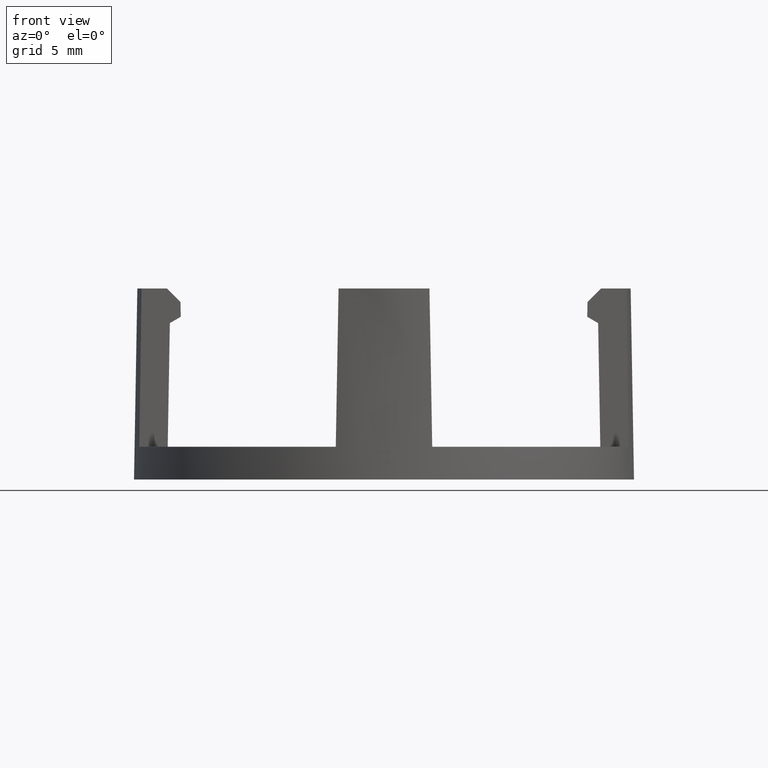
[diagram: clean part render]
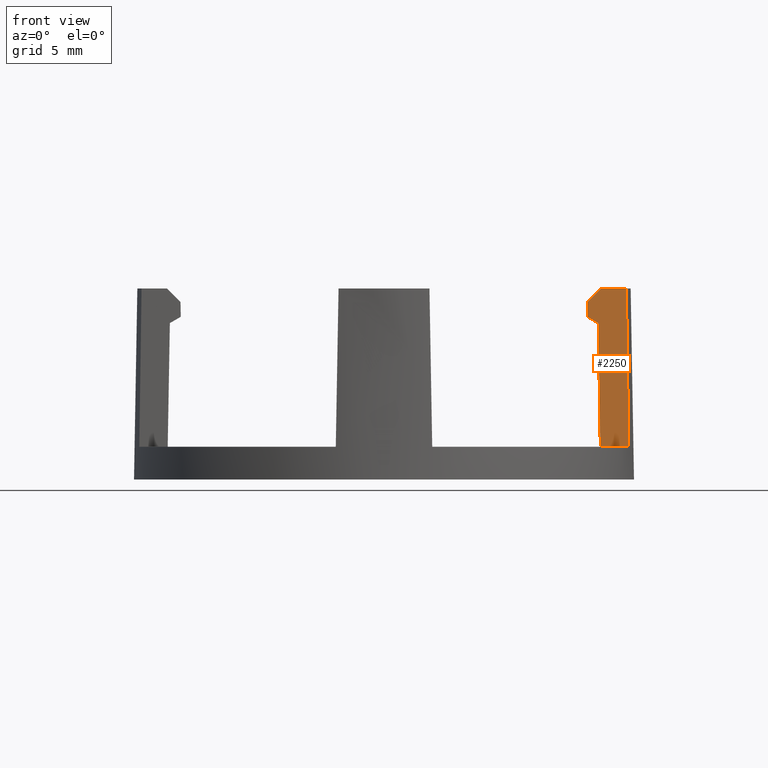
[diagram: same view with one face highlighted and labeled with its STEP entity id]
A machine part, front view. The second image highlights one B-rep face of the part: STEP entity #2250.
In plain terms, the highlighted planar face has unit normal (0, 0.9998, -0.0175).
Its self-contained STEP definition (entity closure, byte-faithful):
#378=CARTESIAN_POINT('',(1.345983302077E1,-2.651859064875E0,3.E-1));
#379=CARTESIAN_POINT('',(1.344583808171E1,-2.634837805463E0,1.275147298670E0));
#380=CARTESIAN_POINT('',(1.341788568992E1,-2.600893973380E0,3.219788136307E0));
#381=CARTESIAN_POINT('',(1.337607061855E1,-2.550274285161E0,6.119788132097E0));
#382=CARTESIAN_POINT('',(1.334827029373E1,-2.516725199556E0,8.041813959170E0));
#383=CARTESIAN_POINT('',(1.333438940836E1,-2.5E0,9.E0));
#502=DIRECTION('',(1.E0,0.E0,0.E0));
#503=VECTOR('',#502,1.405852197121E0);
#504=CARTESIAN_POINT('',(1.192853721124E1,-2.5E0,9.E0));
#505=LINE('',#504,#503);
#899=DIRECTION('',(7.070529271412E-1,1.234165475094E-2,7.070529271412E-1));
#900=VECTOR('',#899,1.040713711745E0);
#901=CARTESIAN_POINT('',(1.119269753504E1,-2.512844129325E0,8.264160323795E0));
#902=LINE('',#901,#900);
#920=DIRECTION('',(1.E0,0.E0,0.E0));
#921=VECTOR('',#920,1.562714926398E0);
#922=CARTESIAN_POINT('',(1.189711809437E1,-2.651859064875E0,3.E-1));
#923=LINE('',#922,#921);
#1277=DIRECTION('',(1.744974916068E-2,-1.744974916068E-2,-9.996954598819E-1));
#1278=VECTOR('',#1277,6.802071503659E0);
#1279=CARTESIAN_POINT('',(1.177842365286E1,-2.533164623364E0,7.1E0));
#1280=LINE('',#1279,#1278);
#1333=DIRECTION('',(-8.659924231677E-1,8.727200095796E-3,4.999809586320E-1));
#1334=VECTOR('',#1333,6.928467085258E-1);
#1335=CARTESIAN_POINT('',(1.177842365286E1,-2.533164623364E0,7.1E0));
#1336=LINE('',#1335,#1334);
#1361=DIRECTION('',(1.744974916069E-2,1.744974916068E-2,9.996954598819E-1));
#1362=VECTOR('',#1361,8.179992758773E-1);
#1363=CARTESIAN_POINT('',(1.117842365286E1,-2.527118011503E0,7.446410161514E0));
#1364=LINE('',#1363,#1362);
#1564=CARTESIAN_POINT('',(1.177842365286E1,-2.533164623364E0,7.1E0));
#1565=CARTESIAN_POINT('',(1.117842365286E1,-2.527118011503E0,7.446410161514E0));
#1566=VERTEX_POINT('',#1564);
#1567=VERTEX_POINT('',#1565);
#1568=CARTESIAN_POINT('',(1.119269753504E1,-2.512844129325E0,8.264160323795E0));
#1569=VERTEX_POINT('',#1568);
#1576=CARTESIAN_POINT('',(1.189711809437E1,-2.651859064875E0,3.E-1));
#1577=VERTEX_POINT('',#1576);
#1578=CARTESIAN_POINT('',(1.333438940836E1,-2.5E0,9.E0));
#1579=VERTEX_POINT('',#1578);
#1580=CARTESIAN_POINT('',(1.192853721124E1,-2.5E0,9.E0));
#1581=VERTEX_POINT('',#1580);
#1582=CARTESIAN_POINT('',(1.345983302077E1,-2.651859064875E0,3.E-1));
#1583=VERTEX_POINT('',#1582);
#2232=CARTESIAN_POINT('',(1.487000480019E1,-2.5E0,9.E0));
#2233=DIRECTION('',(0.E0,9.998476951564E-1,-1.745240643728E-2));
#2234=DIRECTION('',(1.E0,0.E0,0.E0));
#2235=AXIS2_PLACEMENT_3D('',#2232,#2233,#2234);
#2236=PLANE('',#2235);
#2237=ORIENTED_EDGE('',*,*,#1951,.T.);
#2238=ORIENTED_EDGE('',*,*,#1886,.F.);
#2240=ORIENTED_EDGE('',*,*,#2239,.F.);
#2242=ORIENTED_EDGE('',*,*,#2241,.F.);
#2244=ORIENTED_EDGE('',*,*,#2243,.T.);
#2246=ORIENTED_EDGE('',*,*,#2245,.T.);
#2247=ORIENTED_EDGE('',*,*,#2224,.T.);
#2248=EDGE_LOOP('',(#2237,#2238,#2240,#2242,#2244,#2246,#2247));
#2249=FACE_OUTER_BOUND('',#2248,.F.);
#2250=ADVANCED_FACE('',(#2249),#2236,.F.);
#384=B_SPLINE_CURVE_WITH_KNOTS('',3,(#378,#379,#380,#381,#382,#383),
.UNSPECIFIED.,.F.,.F.,(4,1,1,4),(0.E0,3.333333333333E-1,6.666666666667E-1,1.E0),
.UNSPECIFIED.);
#1886=EDGE_CURVE('',#1583,#1579,#384,.T.);
#1951=EDGE_CURVE('',#1581,#1579,#505,.T.);
#2224=EDGE_CURVE('',#1569,#1581,#902,.T.);
#2239=EDGE_CURVE('',#1577,#1583,#923,.T.);
#2241=EDGE_CURVE('',#1566,#1577,#1280,.T.);
#2243=EDGE_CURVE('',#1566,#1567,#1336,.T.);
#2245=EDGE_CURVE('',#1567,#1569,#1364,.T.);